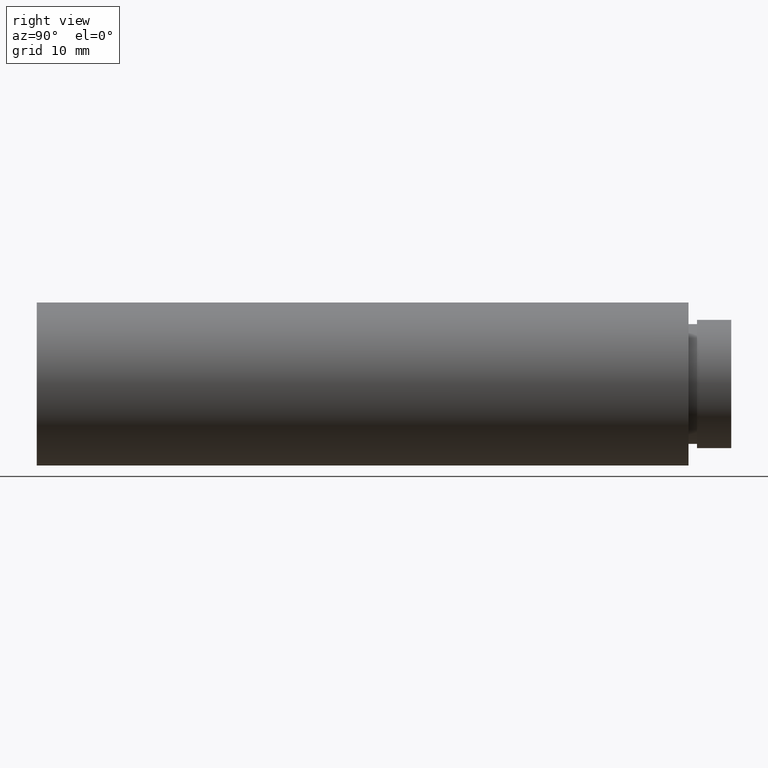
[diagram: clean part render]
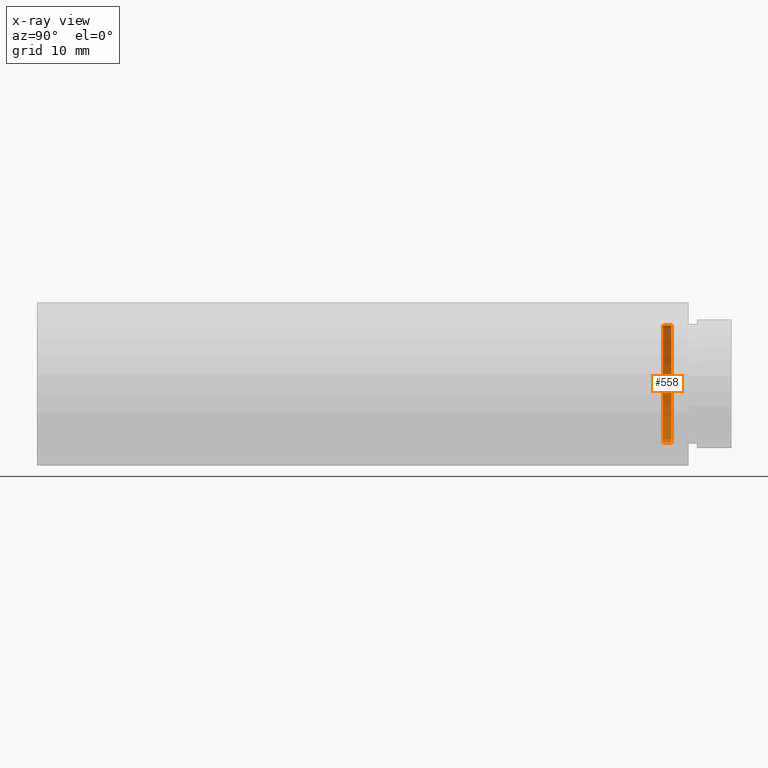
[diagram: x-ray — body ghosted, one internal face saturated and labeled with its STEP entity id]
A machine part, right view, then the same camera in x-ray: the body is ghosted and one INTERNAL B-rep face — a face not visible from any outside direction — is saturated and labeled: STEP entity #558.
In plain terms, the highlighted cylindrical surface (partial cylindrical patch) has radius 6.85 mm, axis along (-0, 1, -0).
Its self-contained STEP definition (entity closure, byte-faithful):
#79 = CYLINDRICAL_SURFACE ( 'NONE', #216, 6.850000000000009400 ) ;
#104 = VECTOR ( 'NONE', #368, 1000.000000000000000 ) ;
#111 = CARTESIAN_POINT ( 'NONE',  ( 0.0000000000000000000, 161.3761669434274500, 0.0000000000000000000 ) ) ;
#132 = DIRECTION ( 'NONE',  ( -0.0000000000000000000, 1.000000000000000000, -0.0000000000000000000 ) ) ;
#163 = EDGE_CURVE ( 'NONE', #194, #421, #360, .T. ) ;
#174 = CARTESIAN_POINT ( 'NONE',  ( 0.0000000000000000000, 74.19999999999998900, 6.850000000000009400 ) ) ;
#176 = DIRECTION ( 'NONE',  ( 0.0000000000000000000, 0.0000000000000000000, 1.000000000000000000 ) ) ;
#187 = EDGE_LOOP ( 'NONE', ( #326, #496, #539, #584 ) ) ;
#192 = VERTEX_POINT ( 'NONE', #504 ) ;
#194 = VERTEX_POINT ( 'NONE', #800 ) ;
#197 = FACE_OUTER_BOUND ( 'NONE', #187, .T. ) ;
#210 = EDGE_CURVE ( 'NONE', #192, #802, #500, .T. ) ;
#216 = AXIS2_PLACEMENT_3D ( 'NONE', #111, #623, #176 ) ;
#249 = DIRECTION ( 'NONE',  ( 0.0000000000000000000, 0.0000000000000000000, 1.000000000000000000 ) ) ;
#260 = DIRECTION ( 'NONE',  ( -0.0000000000000000000, 1.000000000000000000, -0.0000000000000000000 ) ) ;
#273 = CARTESIAN_POINT ( 'NONE',  ( 8.388830574159381700E-016, 74.19999999999998900, -6.850000000000009400 ) ) ;
#287 = VECTOR ( 'NONE', #493, 1000.000000000000000 ) ;
#326 = ORIENTED_EDGE ( 'NONE', *, *, #591, .F. ) ;
#353 = CARTESIAN_POINT ( 'NONE',  ( 8.388830574159381700E-016, 161.3761669434274500, -6.850000000000009400 ) ) ;
#360 = LINE ( 'NONE', #427, #104 ) ;
#368 = DIRECTION ( 'NONE',  ( -0.0000000000000000000, 1.000000000000000000, -0.0000000000000000000 ) ) ;
#384 = AXIS2_PLACEMENT_3D ( 'NONE', #631, #260, #249 ) ;
#421 = VERTEX_POINT ( 'NONE', #174 ) ;
#427 = CARTESIAN_POINT ( 'NONE',  ( 0.0000000000000000000, 161.3761669434274500, 6.850000000000009400 ) ) ;
#493 = DIRECTION ( 'NONE',  ( -0.0000000000000000000, 1.000000000000000000, -0.0000000000000000000 ) ) ;
#496 = ORIENTED_EDGE ( 'NONE', *, *, #210, .T. ) ;
#499 = CIRCLE ( 'NONE', #602, 6.850000000000009400 ) ;
#500 = LINE ( 'NONE', #353, #287 ) ;
#504 = CARTESIAN_POINT ( 'NONE',  ( 8.388830574159381700E-016, 73.19999999999998900, -6.850000000000009400 ) ) ;
#510 = CARTESIAN_POINT ( 'NONE',  ( 0.0000000000000000000, 74.19999999999998900, 0.0000000000000000000 ) ) ;
#539 = ORIENTED_EDGE ( 'NONE', *, *, #627, .T. ) ;
#558 = ADVANCED_FACE ( 'NONE', ( #197 ), #79, .F. ) ;
#561 = DIRECTION ( 'NONE',  ( 0.0000000000000000000, 0.0000000000000000000, 1.000000000000000000 ) ) ;
#584 = ORIENTED_EDGE ( 'NONE', *, *, #163, .F. ) ;
#591 = EDGE_CURVE ( 'NONE', #192, #194, #624, .T. ) ;
#602 = AXIS2_PLACEMENT_3D ( 'NONE', #510, #132, #561 ) ;
#623 = DIRECTION ( 'NONE',  ( -0.0000000000000000000, 1.000000000000000000, -0.0000000000000000000 ) ) ;
#624 = CIRCLE ( 'NONE', #384, 6.850000000000009400 ) ;
#627 = EDGE_CURVE ( 'NONE', #802, #421, #499, .T. ) ;
#631 = CARTESIAN_POINT ( 'NONE',  ( 0.0000000000000000000, 73.19999999999998900, 0.0000000000000000000 ) ) ;
#800 = CARTESIAN_POINT ( 'NONE',  ( 0.0000000000000000000, 73.19999999999998900, 6.850000000000009400 ) ) ;
#802 = VERTEX_POINT ( 'NONE', #273 ) ;